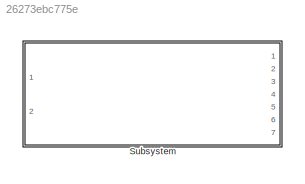
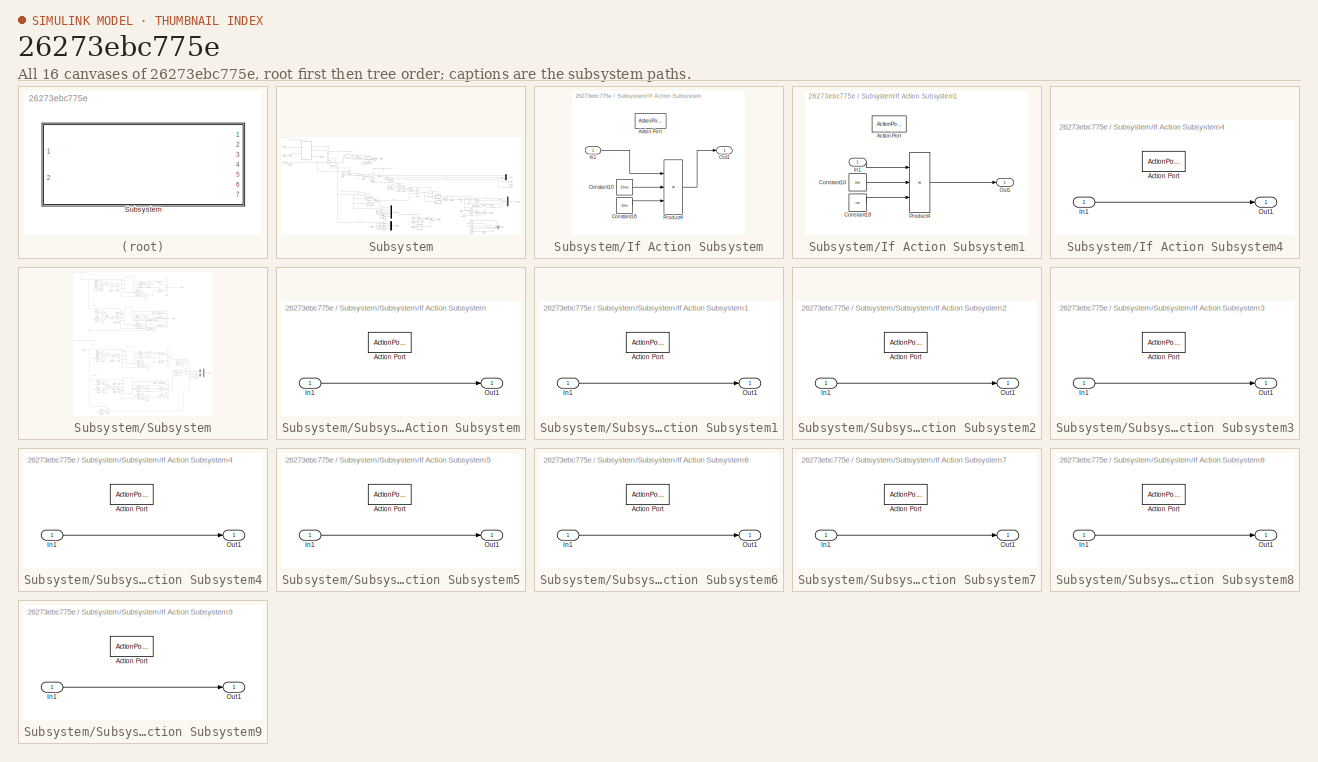
[diagram: thumbnail index - all 16 canvases of the model, root first then tree order]
MODEL slx_26273ebc775e
KIND library
CONFIG AbsTol = auto
CONFIG EnableMultiTasking = off
CONFIG FixedStep = auto
CONFIG MaxStep = auto
CONFIG MinStep = auto
CONFIG RelTol = 1e-3
CONFIG SampleTimeConstraint = Unconstrained
CONFIG Solver = VariableStepAuto
CONFIG SolverName = VariableStepAuto
CONFIG StartTime = 0.0
CONFIG StopTime = 10.0
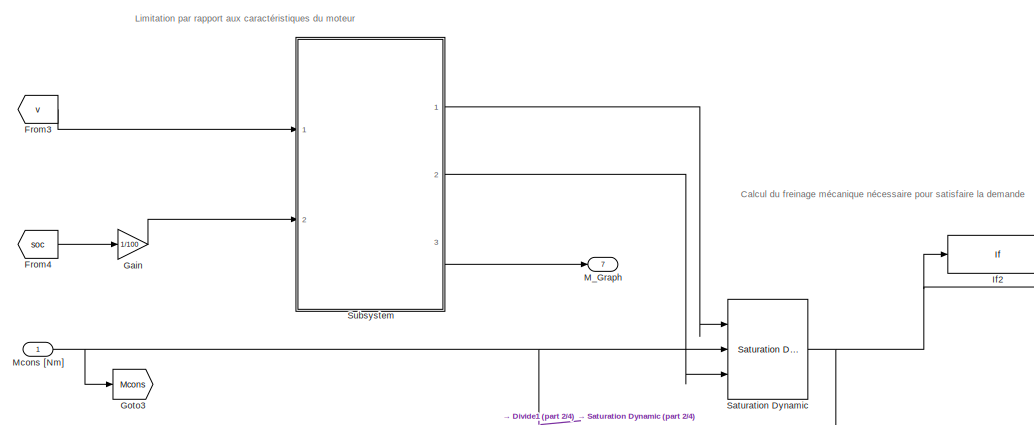
[diagram: Subsystem - part 1/4, top left region]
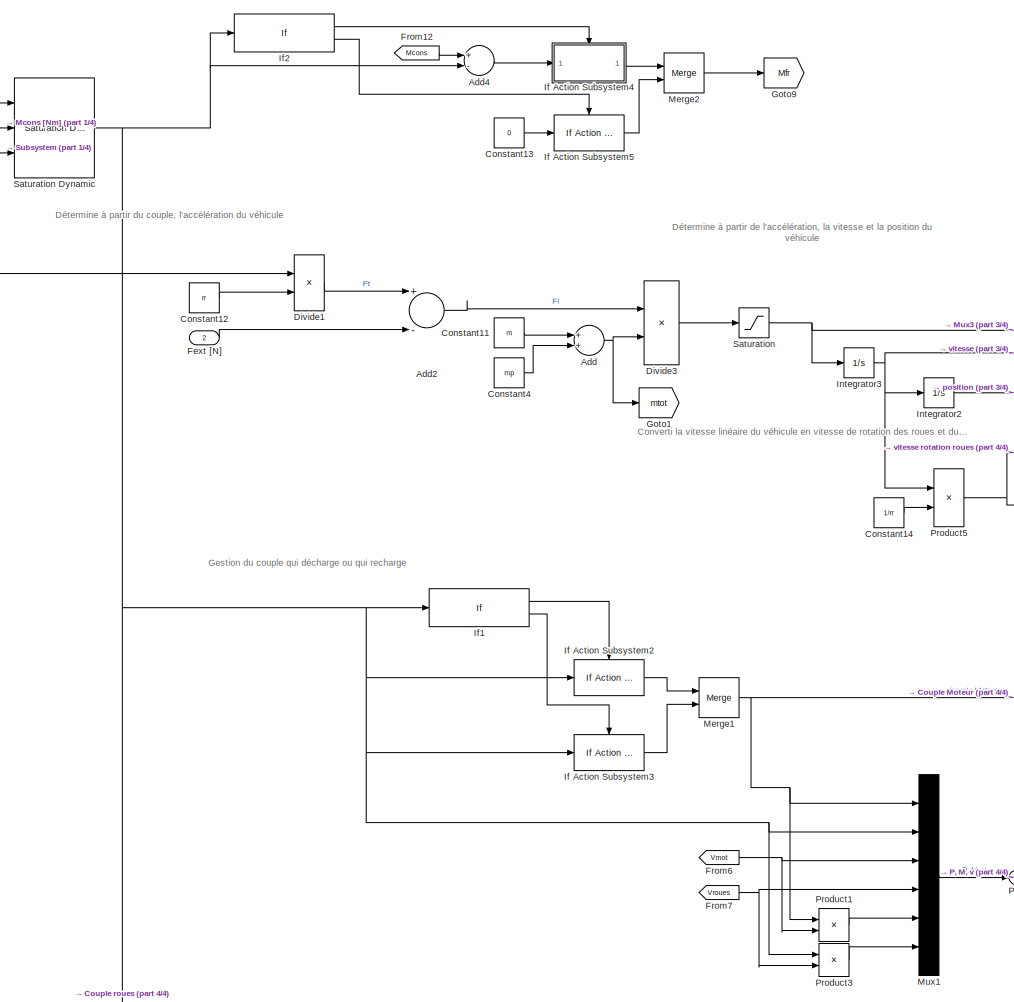
[diagram: Subsystem - part 2/4, central region]
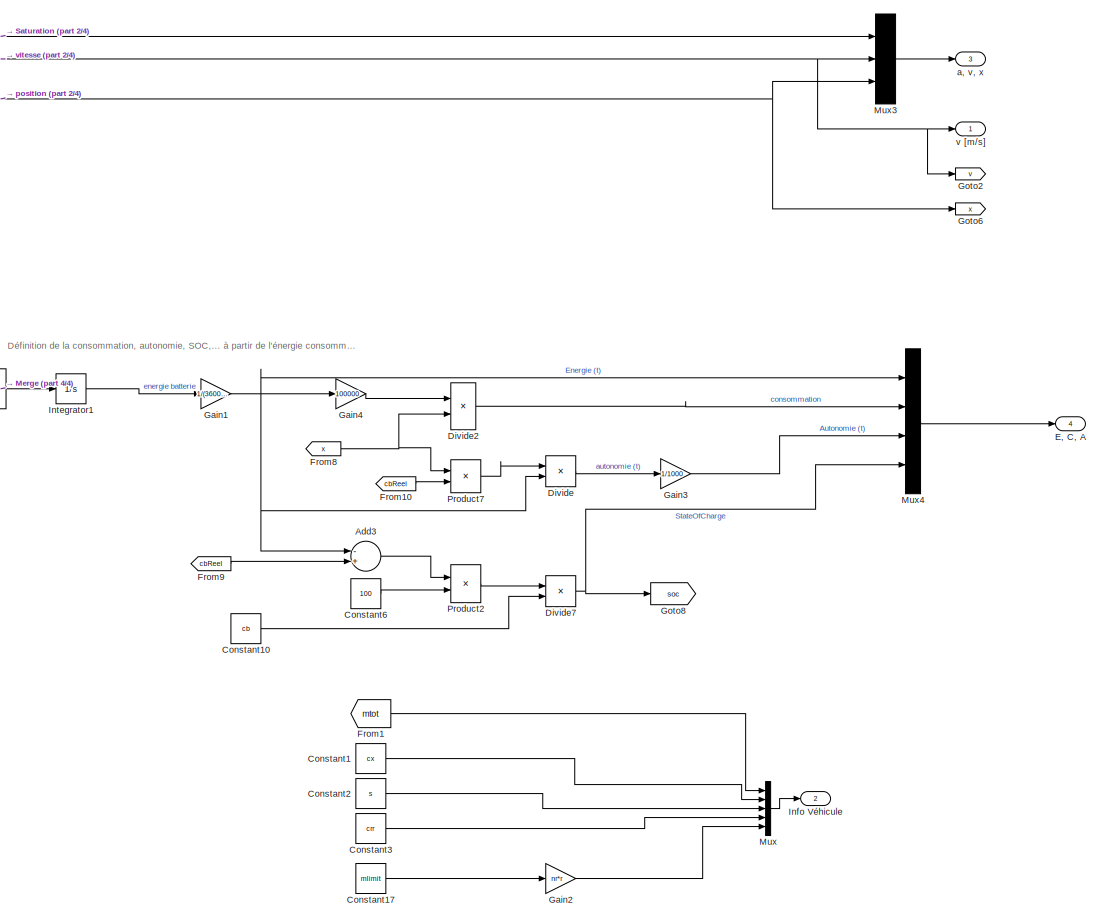
[diagram: Subsystem - part 3/4, bottom right region]
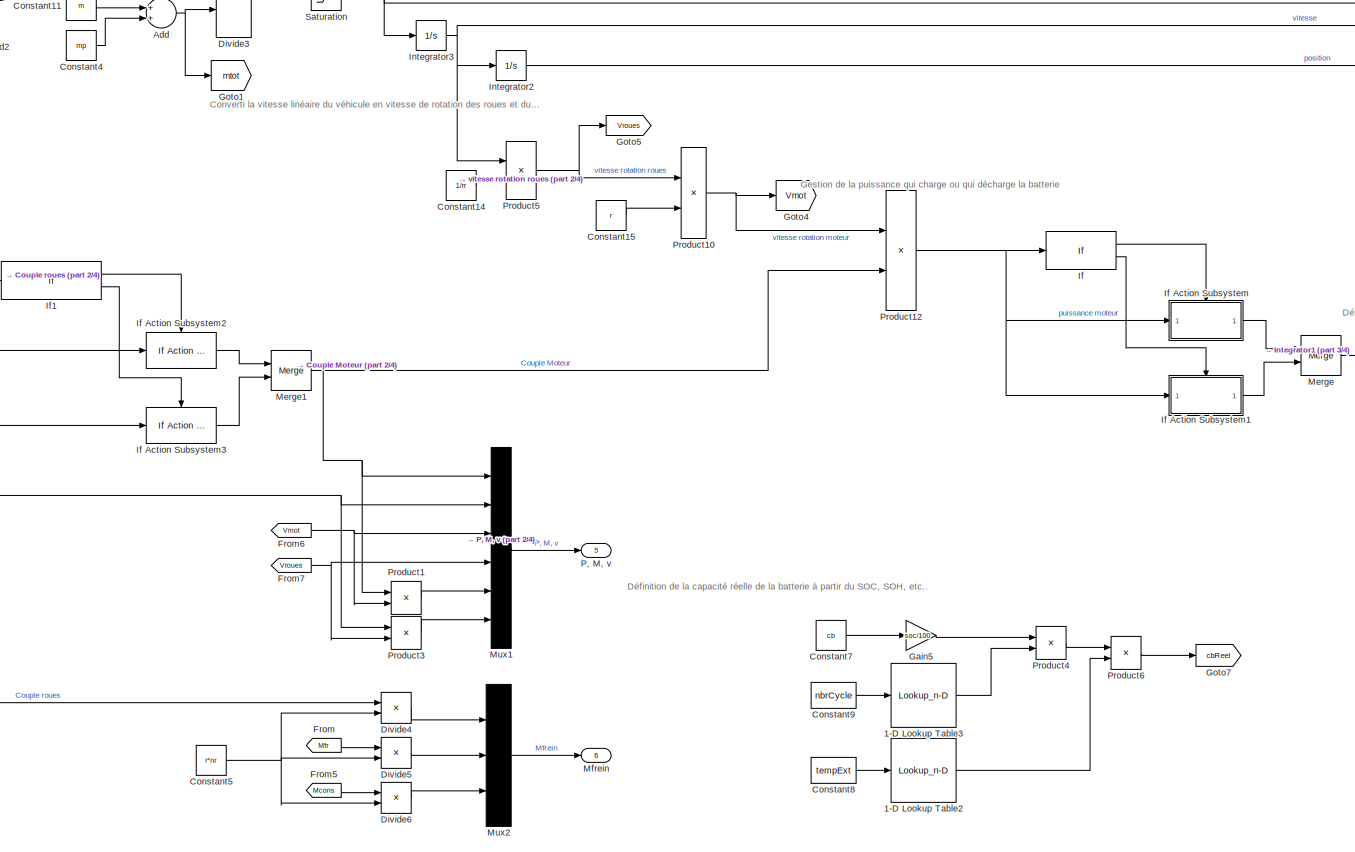
[diagram: Subsystem - part 4/4, bottom center region]
BLOCK [SubSystem] Subsystem
  Ports = [2, 7]
  RequestExecContextInheritance = off
BLOCK [Lookup_n-D] Subsystem/1-D Lookup Table2
  BreakpointsForDimension1 = temp
  InternalRulePriority = Speed
  NumberOfTableDimensions = 1
  Ports = [1, 1]
  RndMeth = Simplest
  Table = dod
BLOCK [Lookup_n-D] Subsystem/1-D Lookup Table3
  BreakpointsForDimension1 = cycleLife
  InternalRulePriority = Speed
  NumberOfTableDimensions = 1
  Ports = [1, 1]
  RndMeth = Simplest
  Table = dod2
BLOCK [Sum] Subsystem/Add
  InputSameDT = off
  OutDataTypeStr = Inherit: Inherit via internal rule
  Ports = [2, 1]
  SaturateOnIntegerOverflow = off
BLOCK [Sum] Subsystem/Add2
  InputSameDT = off
  Inputs = +-
  OutDataTypeStr = Inherit: Inherit via internal rule
  Ports = [2, 1]
  SaturateOnIntegerOverflow = off
BLOCK [Sum] Subsystem/Add3
  InputSameDT = off
  Inputs = -+
  OutDataTypeStr = Inherit: Inherit via internal rule
  Ports = [2, 1]
  SaturateOnIntegerOverflow = off
BLOCK [Sum] Subsystem/Add4
  InputSameDT = off
  Inputs = +-
  OutDataTypeStr = Inherit: Inherit via internal rule
  Ports = [2, 1]
  SaturateOnIntegerOverflow = off
BLOCK [Constant] Subsystem/Constant1
  Value = cx
BLOCK [Constant] Subsystem/Constant10
  Value = cb
BLOCK [Constant] Subsystem/Constant11
  Value = m
BLOCK [Constant] Subsystem/Constant12
  Value = rr
BLOCK [Constant] Subsystem/Constant13
  Value = 0
BLOCK [Constant] Subsystem/Constant14
  Value = 1/rr
BLOCK [Constant] Subsystem/Constant15
  Value = r
BLOCK [Constant] Subsystem/Constant17
  Value = mlimit
BLOCK [Constant] Subsystem/Constant2
  Value = s
BLOCK [Constant] Subsystem/Constant3
  Value = crr
BLOCK [Constant] Subsystem/Constant4
  Value = mp
BLOCK [Constant] Subsystem/Constant5
  Value = r*nr
BLOCK [Constant] Subsystem/Constant6
  Value = 100
BLOCK [Constant] Subsystem/Constant7
  Value = cb
BLOCK [Constant] Subsystem/Constant8
  Value = tempExt
BLOCK [Constant] Subsystem/Constant9
  Value = nbrCycle
BLOCK [Product] Subsystem/Divide
  InputSameDT = off
  Inputs = */
  OutDataTypeStr = Inherit: Inherit via internal rule
  Ports = [2, 1]
  RndMeth = Floor
  SaturateOnIntegerOverflow = off
BLOCK [Product] Subsystem/Divide1
  InputSameDT = off
  Inputs = */
  OutDataTypeStr = Inherit: Inherit via internal rule
  Ports = [2, 1]
  RndMeth = Floor
  SaturateOnIntegerOverflow = off
BLOCK [Product] Subsystem/Divide2
  InputSameDT = off
  Inputs = */
  OutDataTypeStr = Inherit: Inherit via internal rule
  Ports = [2, 1]
  RndMeth = Floor
  SaturateOnIntegerOverflow = off
BLOCK [Product] Subsystem/Divide3
  InputSameDT = off
  Inputs = */
  OutDataTypeStr = Inherit: Inherit via internal rule
  Ports = [2, 1]
  RndMeth = Floor
  SaturateOnIntegerOverflow = off
BLOCK [Product] Subsystem/Divide4
  InputSameDT = off
  Inputs = */
  OutDataTypeStr = Inherit: Inherit via internal rule
  Ports = [2, 1]
  RndMeth = Floor
  SaturateOnIntegerOverflow = off
BLOCK [Product] Subsystem/Divide5
  InputSameDT = off
  Inputs = */
  OutDataTypeStr = Inherit: Inherit via internal rule
  Ports = [2, 1]
  RndMeth = Floor
  SaturateOnIntegerOverflow = off
BLOCK [Product] Subsystem/Divide6
  InputSameDT = off
  Inputs = */
  OutDataTypeStr = Inherit: Inherit via internal rule
  Ports = [2, 1]
  RndMeth = Floor
  SaturateOnIntegerOverflow = off
BLOCK [Product] Subsystem/Divide7
  InputSameDT = off
  Inputs = */
  OutDataTypeStr = Inherit: Inherit via internal rule
  Ports = [2, 1]
  RndMeth = Floor
  SaturateOnIntegerOverflow = off
BLOCK [Outport] Subsystem/E, C, A
  IconDisplay = Port number
  Port = 4
BLOCK [Inport] Subsystem/Fext [N]
  IconDisplay = Port number
  Port = 2
BLOCK [From] Subsystem/From
  GotoTag = Mfr
BLOCK [From] Subsystem/From1
  GotoTag = mtot
BLOCK [From] Subsystem/From10
  GotoTag = cbReel
BLOCK [From] Subsystem/From12
  GotoTag = Mcons
BLOCK [From] Subsystem/From3
  GotoTag = v
BLOCK [From] Subsystem/From4
  GotoTag = soc
BLOCK [From] Subsystem/From5
  GotoTag = Mcons
BLOCK [From] Subsystem/From6
  GotoTag = Vmot
BLOCK [From] Subsystem/From7
  GotoTag = Vroues
BLOCK [From] Subsystem/From8
  GotoTag = x
BLOCK [From] Subsystem/From9
  GotoTag = cbReel
BLOCK [Gain] Subsystem/Gain
  Gain = 1/100
  OutDataTypeStr = Inherit: Inherit via internal rule
  ParamDataTypeStr = Inherit: Inherit via internal rule
  SaturateOnIntegerOverflow = off
BLOCK [Gain] Subsystem/Gain1
  Gain = 1/(3600*1000)
  OutDataTypeStr = Inherit: Inherit via internal rule
  ParamDataTypeStr = Inherit: Inherit via internal rule
  SaturateOnIntegerOverflow = off
BLOCK [Gain] Subsystem/Gain2
  Gain = nr*r
  OutDataTypeStr = Inherit: Inherit via internal rule
  ParamDataTypeStr = Inherit: Inherit via internal rule
  SaturateOnIntegerOverflow = off
BLOCK [Gain] Subsystem/Gain3
  Gain = 1/1000
  OutDataTypeStr = Inherit: Inherit via internal rule
  ParamDataTypeStr = Inherit: Inherit via internal rule
  SaturateOnIntegerOverflow = off
BLOCK [Gain] Subsystem/Gain4
  Gain = 100000
  OutDataTypeStr = Inherit: Inherit via internal rule
  ParamDataTypeStr = Inherit: Inherit via internal rule
  SaturateOnIntegerOverflow = off
BLOCK [Gain] Subsystem/Gain5
  Gain = soc/100
  OutDataTypeStr = Inherit: Inherit via internal rule
  ParamDataTypeStr = Inherit: Inherit via internal rule
  SaturateOnIntegerOverflow = off
BLOCK [Goto] Subsystem/Goto1
  GotoTag = mtot
BLOCK [Goto] Subsystem/Goto2
  GotoTag = v
BLOCK [Goto] Subsystem/Goto3
  GotoTag = Mcons
BLOCK [Goto] Subsystem/Goto4
  GotoTag = Vmot
BLOCK [Goto] Subsystem/Goto5
  GotoTag = Vroues
BLOCK [Goto] Subsystem/Goto6
  GotoTag = x
BLOCK [Goto] Subsystem/Goto7
  GotoTag = cbReel
BLOCK [Goto] Subsystem/Goto8
  GotoTag = soc
BLOCK [Goto] Subsystem/Goto9
  GotoTag = Mfr
BLOCK [If] Subsystem/If
  Ports = [1, 2]
BLOCK [SubSystem] Subsystem/If Action Subsystem
  Ports = [1, 1, 0, 0, 0, 0, 0, 1]
  RequestExecContextInheritance = off
  TreatAsAtomicUnit = on
BLOCK [ActionPort] Subsystem/If Action Subsystem/Action Port
  ActionType = then
BLOCK [Constant] Subsystem/If Action Subsystem/Constant10
  Value = 1/nm
BLOCK [Constant] Subsystem/If Action Subsystem/Constant18
  Value = 1/nc
BLOCK [Inport] Subsystem/If Action Subsystem/In1
  IconDisplay = Port number
BLOCK [Outport] Subsystem/If Action Subsystem/Out1
  IconDisplay = Port number
BLOCK [Product] Subsystem/If Action Subsystem/Product4
  InputSameDT = off
  Inputs = 3
  OutDataTypeStr = Inherit: Inherit via internal rule
  Ports = [3, 1]
  RndMeth = Floor
  SaturateOnIntegerOverflow = off
BLOCK [SubSystem] Subsystem/If Action Subsystem1
  Ports = [1, 1, 0, 0, 0, 0, 0, 1]
  RequestExecContextInheritance = off
  TreatAsAtomicUnit = on
BLOCK [ActionPort] Subsystem/If Action Subsystem1/Action Port
  ActionType = else
BLOCK [Constant] Subsystem/If Action Subsystem1/Constant10
  Value = nm
BLOCK [Constant] Subsystem/If Action Subsystem1/Constant18
  Value = nc
BLOCK [Inport] Subsystem/If Action Subsystem1/In1
  IconDisplay = Port number
BLOCK [Outport] Subsystem/If Action Subsystem1/Out1
  IconDisplay = Port number
BLOCK [Product] Subsystem/If Action Subsystem1/Product4
  InputSameDT = off
  Inputs = 3
  OutDataTypeStr = Inherit: Inherit via internal rule
  Ports = [3, 1]
  RndMeth = Floor
  SaturateOnIntegerOverflow = off
BLOCK [Reference] Subsystem/If Action Subsystem2  REF=$bdroot/Subsystem/If Action
Subsystem
  Ports = [1, 1, 0, 0, 0, 0, 0, 1]
  SourceBlock = $bdroot/Subsystem/If Action\nSubsystem
  SourceType = SubSystem
BLOCK [Reference] Subsystem/If Action Subsystem3  REF=$bdroot/Subsystem/If Action
Subsystem1
  Ports = [1, 1, 0, 0, 0, 0, 0, 1]
  SourceBlock = $bdroot/Subsystem/If Action\nSubsystem1
  SourceType = SubSystem
BLOCK [SubSystem] Subsystem/If Action Subsystem4
  Ports = [1, 1, 0, 0, 0, 0, 0, 1]
  RequestExecContextInheritance = off
  TreatAsAtomicUnit = on
BLOCK [ActionPort] Subsystem/If Action Subsystem4/Action Port
  ActionType = then
BLOCK [Inport] Subsystem/If Action Subsystem4/In1
  IconDisplay = Port number
BLOCK [Outport] Subsystem/If Action Subsystem4/Out1
  IconDisplay = Port number
BLOCK [Reference] Subsystem/If Action Subsystem5  REF=$bdroot/Subsystem/If Action
Subsystem4
  Ports = [1, 1, 0, 0, 0, 0, 0, 1]
  SourceBlock = $bdroot/Subsystem/If Action\nSubsystem4
  SourceType = SubSystem
BLOCK [If] Subsystem/If1
  IfExpression = u1 >= 0
  Ports = [1, 2]
BLOCK [If] Subsystem/If2
  IfExpression = u1 <= 0
  Ports = [1, 2]
BLOCK [Outport] Subsystem/Info Véhicule
  IconDisplay = Port number
  Port = 2
BLOCK [Integrator] Subsystem/Integrator1
  Ports = [1, 1]
BLOCK [Integrator] Subsystem/Integrator2
  Ports = [1, 1]
BLOCK [Integrator] Subsystem/Integrator3
  Ports = [1, 1]
BLOCK [Outport] Subsystem/M_Graph 
  IconDisplay = Port number
  Port = 7
BLOCK [Inport] Subsystem/Mcons [Nm]
  IconDisplay = Port number
BLOCK [Merge] Subsystem/Merge
  Ports = [2, 1]
BLOCK [Merge] Subsystem/Merge1
  Ports = [2, 1]
BLOCK [Merge] Subsystem/Merge2
  Ports = [2, 1]
BLOCK [Outport] Subsystem/Mfrein
  IconDisplay = Port number
  Port = 6
BLOCK [Mux] Subsystem/Mux
  DisplayOption = bar
  Inputs = 5
  Ports = [5, 1]
BLOCK [Mux] Subsystem/Mux1
  DisplayOption = bar
  Inputs = 6
  Ports = [6, 1]
BLOCK [Mux] Subsystem/Mux2
  DisplayOption = bar
  Inputs = 3
  Ports = [3, 1]
BLOCK [Mux] Subsystem/Mux3
  DisplayOption = bar
  Inputs = 3
  Ports = [3, 1]
BLOCK [Mux] Subsystem/Mux4
  DisplayOption = bar
  Ports = [4, 1]
BLOCK [Outport] Subsystem/P, M, v
  IconDisplay = Port number
  Port = 5
BLOCK [Product] Subsystem/Product1
  InputSameDT = off
  OutDataTypeStr = Inherit: Inherit via internal rule
  Ports = [2, 1]
  RndMeth = Floor
  SaturateOnIntegerOverflow = off
BLOCK [Product] Subsystem/Product10
  InputSameDT = off
  OutDataTypeStr = Inherit: Inherit via internal rule
  Ports = [2, 1]
  RndMeth = Floor
  SaturateOnIntegerOverflow = off
BLOCK [Product] Subsystem/Product12
  InputSameDT = off
  OutDataTypeStr = Inherit: Inherit via internal rule
  Ports = [2, 1]
  RndMeth = Floor
  SaturateOnIntegerOverflow = off
BLOCK [Product] Subsystem/Product2
  InputSameDT = off
  OutDataTypeStr = Inherit: Inherit via internal rule
  Ports = [2, 1]
  RndMeth = Floor
  SaturateOnIntegerOverflow = off
BLOCK [Product] Subsystem/Product3
  InputSameDT = off
  OutDataTypeStr = Inherit: Inherit via internal rule
  Ports = [2, 1]
  RndMeth = Floor
  SaturateOnIntegerOverflow = off
BLOCK [Product] Subsystem/Product4
  InputSameDT = off
  OutDataTypeStr = Inherit: Inherit via internal rule
  Ports = [2, 1]
  RndMeth = Floor
  SaturateOnIntegerOverflow = off
BLOCK [Product] Subsystem/Product5
  InputSameDT = off
  OutDataTypeStr = Inherit: Inherit via internal rule
  Ports = [2, 1]
  RndMeth = Floor
  SaturateOnIntegerOverflow = off
BLOCK [Product] Subsystem/Product6
  InputSameDT = off
  OutDataTypeStr = Inherit: Inherit via internal rule
  Ports = [2, 1]
  RndMeth = Floor
  SaturateOnIntegerOverflow = off
BLOCK [Product] Subsystem/Product7
  InputSameDT = off
  OutDataTypeStr = Inherit: Inherit via internal rule
  Ports = [2, 1]
  RndMeth = Floor
  SaturateOnIntegerOverflow = off
BLOCK [Saturate] Subsystem/Saturation
  InputPortMap = u0
  LowerLimit = -alimit
  Ports = [1, 1]
  UpperLimit = alimit
BLOCK [Reference] Subsystem/Saturation Dynamic  REF=simulink/Discontinuities/Saturation
Dynamic
  Ports = [3, 1]
  SourceBlock = simulink/Discontinuities/Saturation\nDynamic
  SourceProductBaseCode = SL
  SourceProductName = Simulink
  SourceType = Saturation Dynamic
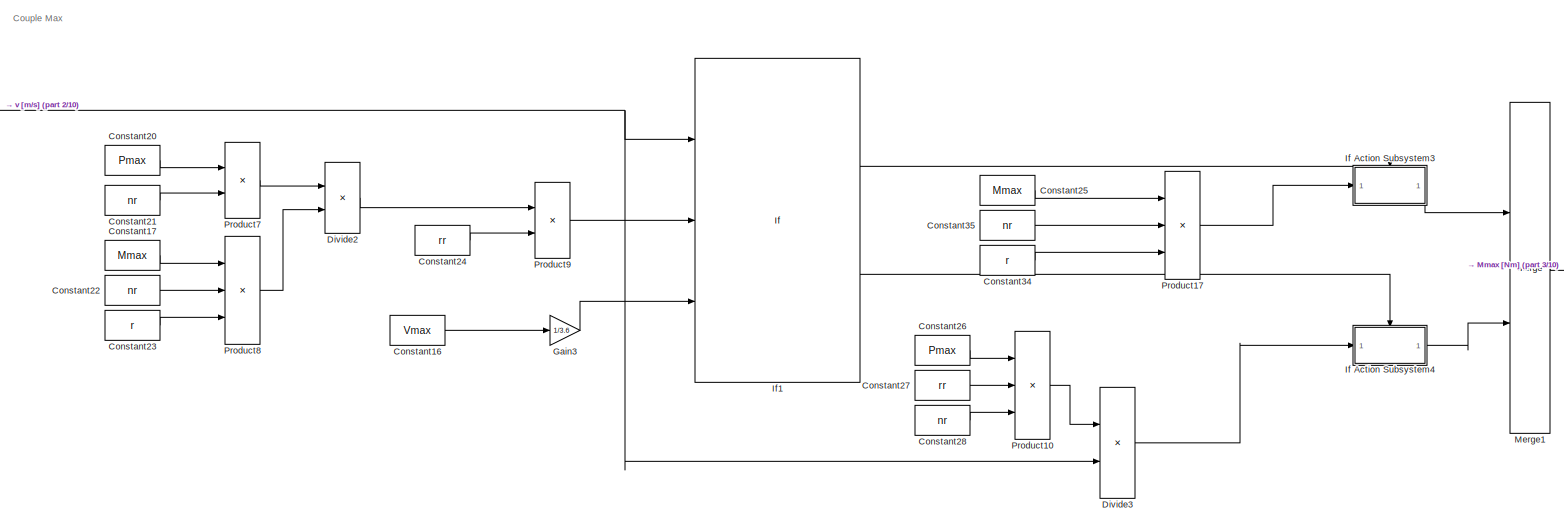
[diagram: Subsystem/Subsystem - part 1/10, top center region]
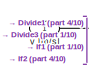
[diagram: Subsystem/Subsystem - part 2/10, top left region]
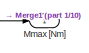
[diagram: Subsystem/Subsystem - part 3/10, top right region]
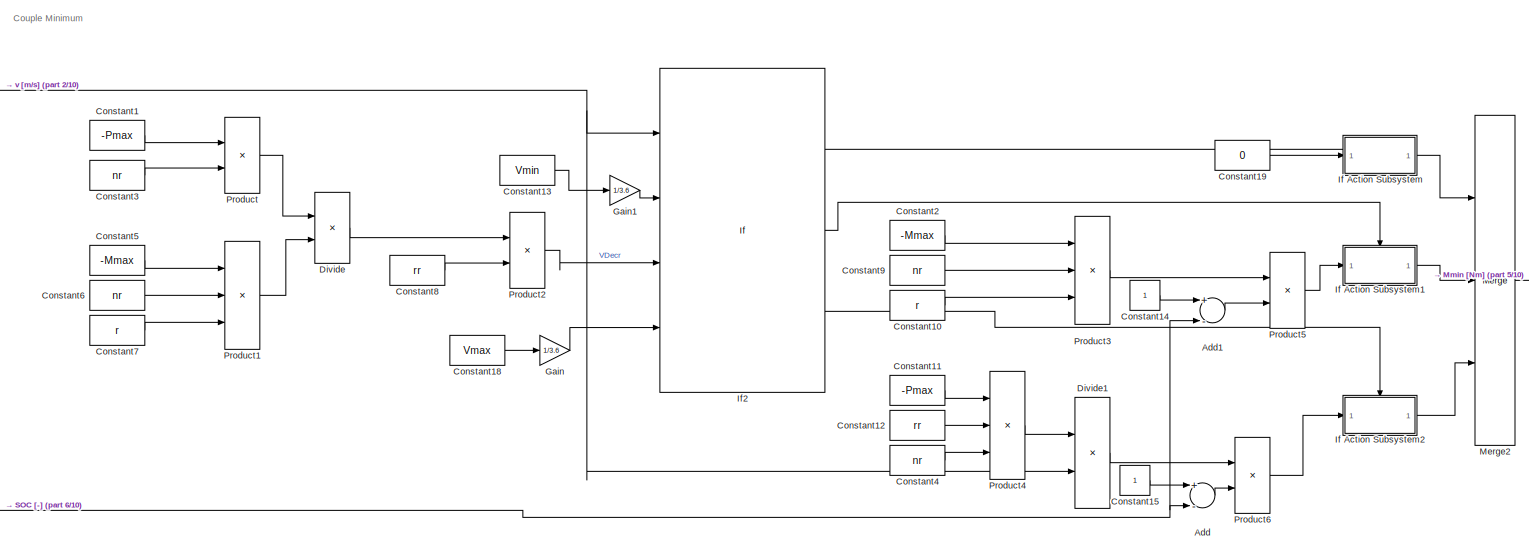
[diagram: Subsystem/Subsystem - part 4/10, top center region]
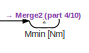
[diagram: Subsystem/Subsystem - part 5/10, top right region]
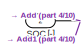
[diagram: Subsystem/Subsystem - part 6/10, middle left region]
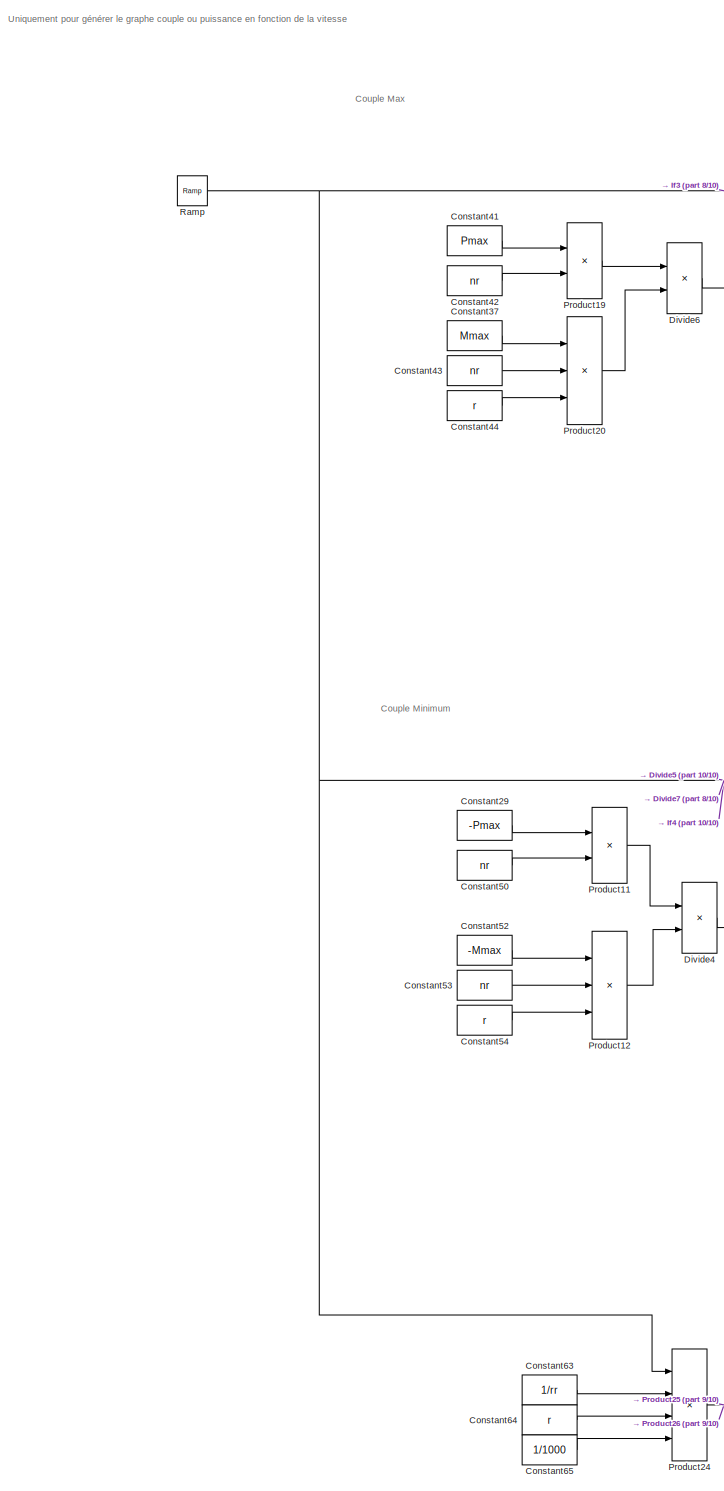
[diagram: Subsystem/Subsystem - part 7/10, bottom left region]
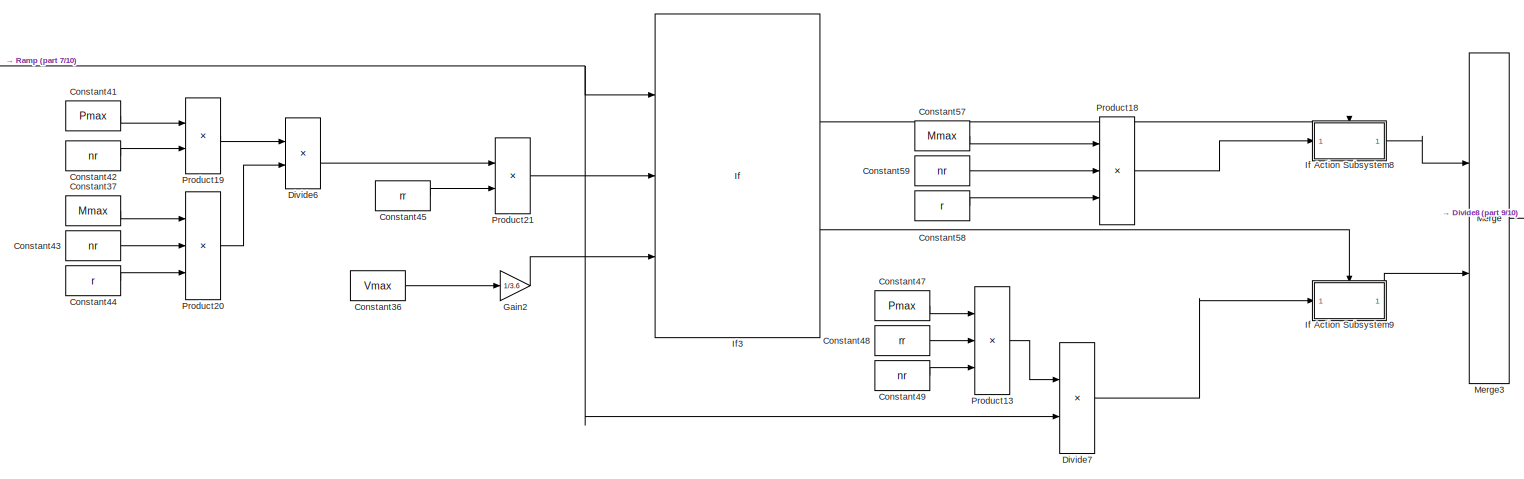
[diagram: Subsystem/Subsystem - part 8/10, central region]
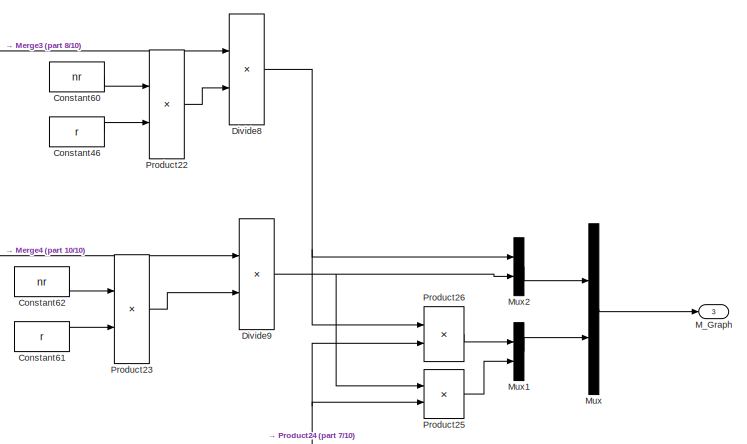
[diagram: Subsystem/Subsystem - part 9/10, bottom right region]
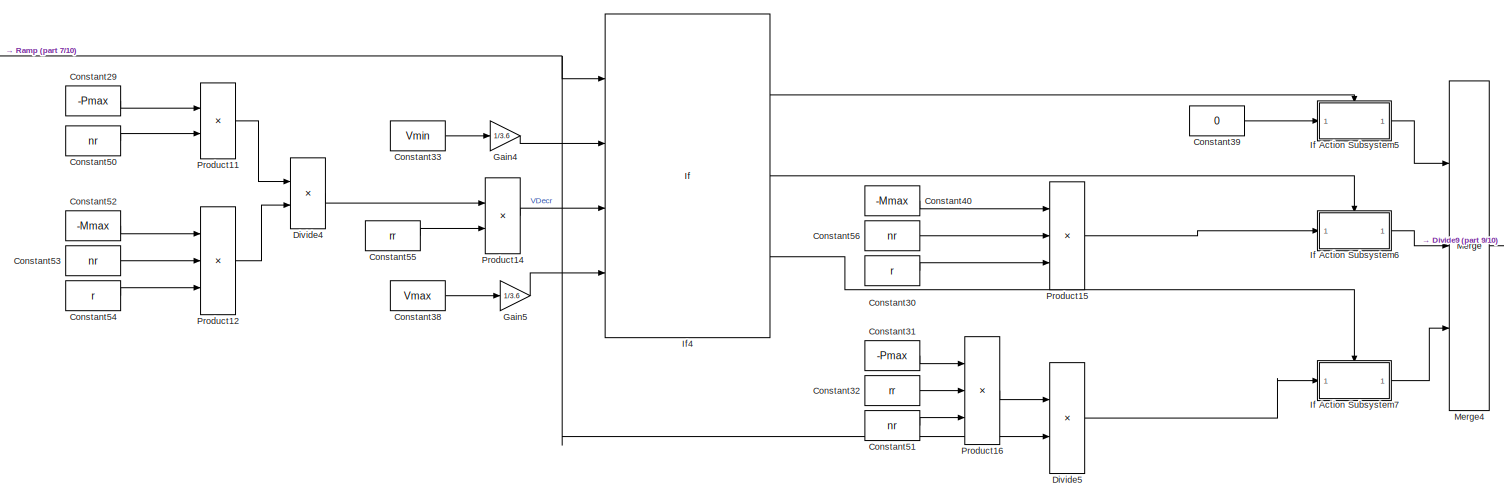
[diagram: Subsystem/Subsystem - part 10/10, bottom center region]
BLOCK [SubSystem] Subsystem/Subsystem
  Ports = [2, 3]
  RequestExecContextInheritance = off
BLOCK [Sum] Subsystem/Subsystem/Add
  InputSameDT = off
  Inputs = +-
  OutDataTypeStr = Inherit: Inherit via internal rule
  Ports = [2, 1]
  SaturateOnIntegerOverflow = off
BLOCK [Sum] Subsystem/Subsystem/Add1
  InputSameDT = off
  Inputs = +-
  OutDataTypeStr = Inherit: Inherit via internal rule
  Ports = [2, 1]
  SaturateOnIntegerOverflow = off
BLOCK [Constant] Subsystem/Subsystem/Constant1
  Value = -Pmax
BLOCK [Constant] Subsystem/Subsystem/Constant10
  Value = r
BLOCK [Constant] Subsystem/Subsystem/Constant11
  Value = -Pmax
BLOCK [Constant] Subsystem/Subsystem/Constant12
  Value = rr
BLOCK [Constant] Subsystem/Subsystem/Constant13
  Value = Vmin
BLOCK [Constant] Subsystem/Subsystem/Constant14
BLOCK [Constant] Subsystem/Subsystem/Constant15
BLOCK [Constant] Subsystem/Subsystem/Constant16
  Value = Vmax
BLOCK [Constant] Subsystem/Subsystem/Constant17
  Value = Mmax
BLOCK [Constant] Subsystem/Subsystem/Constant18
  Value = Vmax
BLOCK [Constant] Subsystem/Subsystem/Constant19
  Value = 0
BLOCK [Constant] Subsystem/Subsystem/Constant2
  Value = -Mmax
BLOCK [Constant] Subsystem/Subsystem/Constant20
  Value = Pmax
BLOCK [Constant] Subsystem/Subsystem/Constant21
  Value = nr
BLOCK [Constant] Subsystem/Subsystem/Constant22
  Value = nr
BLOCK [Constant] Subsystem/Subsystem/Constant23
  Value = r
BLOCK [Constant] Subsystem/Subsystem/Constant24
  Value = rr
BLOCK [Constant] Subsystem/Subsystem/Constant25
  Value = Mmax
BLOCK [Constant] Subsystem/Subsystem/Constant26
  Value = Pmax
BLOCK [Constant] Subsystem/Subsystem/Constant27
  Value = rr
BLOCK [Constant] Subsystem/Subsystem/Constant28
  Value = nr
BLOCK [Constant] Subsystem/Subsystem/Constant29
  Value = -Pmax
BLOCK [Constant] Subsystem/Subsystem/Constant3
  Value = nr
BLOCK [Constant] Subsystem/Subsystem/Constant30
  Value = r
BLOCK [Constant] Subsystem/Subsystem/Constant31
  Value = -Pmax
BLOCK [Constant] Subsystem/Subsystem/Constant32
  Value = rr
BLOCK [Constant] Subsystem/Subsystem/Constant33
  Value = Vmin
BLOCK [Constant] Subsystem/Subsystem/Constant34
  Value = r
BLOCK [Constant] Subsystem/Subsystem/Constant35
  Value = nr
BLOCK [Constant] Subsystem/Subsystem/Constant36
  Value = Vmax
BLOCK [Constant] Subsystem/Subsystem/Constant37
  Value = Mmax
BLOCK [Constant] Subsystem/Subsystem/Constant38
  Value = Vmax
BLOCK [Constant] Subsystem/Subsystem/Constant39
  Value = 0
BLOCK [Constant] Subsystem/Subsystem/Constant4
  Value = nr
BLOCK [Constant] Subsystem/Subsystem/Constant40
  Value = -Mmax
BLOCK [Constant] Subsystem/Subsystem/Constant41
  Value = Pmax
BLOCK [Constant] Subsystem/Subsystem/Constant42
  Value = nr
BLOCK [Constant] Subsystem/Subsystem/Constant43
  Value = nr
BLOCK [Constant] Subsystem/Subsystem/Constant44
  Value = r
BLOCK [Constant] Subsystem/Subsystem/Constant45
  Value = rr
BLOCK [Constant] Subsystem/Subsystem/Constant46
  Value = r
BLOCK [Constant] Subsystem/Subsystem/Constant47
  Value = Pmax
BLOCK [Constant] Subsystem/Subsystem/Constant48
  Value = rr
BLOCK [Constant] Subsystem/Subsystem/Constant49
  Value = nr
BLOCK [Constant] Subsystem/Subsystem/Constant5
  Value = -Mmax
BLOCK [Constant] Subsystem/Subsystem/Constant50
  Value = nr
BLOCK [Constant] Subsystem/Subsystem/Constant51
  Value = nr
BLOCK [Constant] Subsystem/Subsystem/Constant52
  Value = -Mmax
BLOCK [Constant] Subsystem/Subsystem/Constant53
  Value = nr
BLOCK [Constant] Subsystem/Subsystem/Constant54
  Value = r
BLOCK [Constant] Subsystem/Subsystem/Constant55
  Value = rr
BLOCK [Constant] Subsystem/Subsystem/Constant56
  Value = nr
BLOCK [Constant] Subsystem/Subsystem/Constant57
  Value = Mmax
BLOCK [Constant] Subsystem/Subsystem/Constant58
  Value = r
BLOCK [Constant] Subsystem/Subsystem/Constant59
  Value = nr
BLOCK [Constant] Subsystem/Subsystem/Constant6
  Value = nr
BLOCK [Constant] Subsystem/Subsystem/Constant60
  Value = nr
BLOCK [Constant] Subsystem/Subsystem/Constant61
  Value = r
BLOCK [Constant] Subsystem/Subsystem/Constant62
  Value = nr
BLOCK [Constant] Subsystem/Subsystem/Constant63
  Value = 1/rr
BLOCK [Constant] Subsystem/Subsystem/Constant64
  Value = r
BLOCK [Constant] Subsystem/Subsystem/Constant65
  Value = 1/1000
BLOCK [Constant] Subsystem/Subsystem/Constant7
  Value = r
BLOCK [Constant] Subsystem/Subsystem/Constant8
  Value = rr
BLOCK [Constant] Subsystem/Subsystem/Constant9
  Value = nr
BLOCK [Product] Subsystem/Subsystem/Divide
  InputSameDT = off
  Inputs = */
  OutDataTypeStr = Inherit: Inherit via internal rule
  Ports = [2, 1]
  RndMeth = Floor
  SaturateOnIntegerOverflow = off
BLOCK [Product] Subsystem/Subsystem/Divide1
  InputSameDT = off
  Inputs = */
  OutDataTypeStr = Inherit: Inherit via internal rule
  Ports = [2, 1]
  RndMeth = Floor
  SaturateOnIntegerOverflow = off
BLOCK [Product] Subsystem/Subsystem/Divide2
  InputSameDT = off
  Inputs = */
  OutDataTypeStr = Inherit: Inherit via internal rule
  Ports = [2, 1]
  RndMeth = Floor
  SaturateOnIntegerOverflow = off
BLOCK [Product] Subsystem/Subsystem/Divide3
  InputSameDT = off
  Inputs = */
  OutDataTypeStr = Inherit: Inherit via internal rule
  Ports = [2, 1]
  RndMeth = Floor
  SaturateOnIntegerOverflow = off
BLOCK [Product] Subsystem/Subsystem/Divide4
  InputSameDT = off
  Inputs = */
  OutDataTypeStr = Inherit: Inherit via internal rule
  Ports = [2, 1]
  RndMeth = Floor
  SaturateOnIntegerOverflow = off
BLOCK [Product] Subsystem/Subsystem/Divide5
  InputSameDT = off
  Inputs = */
  OutDataTypeStr = Inherit: Inherit via internal rule
  Ports = [2, 1]
  RndMeth = Floor
  SaturateOnIntegerOverflow = off
BLOCK [Product] Subsystem/Subsystem/Divide6
  InputSameDT = off
  Inputs = */
  OutDataTypeStr = Inherit: Inherit via internal rule
  Ports = [2, 1]
  RndMeth = Floor
  SaturateOnIntegerOverflow = off
BLOCK [Product] Subsystem/Subsystem/Divide7
  InputSameDT = off
  Inputs = */
  OutDataTypeStr = Inherit: Inherit via internal rule
  Ports = [2, 1]
  RndMeth = Floor
  SaturateOnIntegerOverflow = off
BLOCK [Product] Subsystem/Subsystem/Divide8
  InputSameDT = off
  Inputs = */
  OutDataTypeStr = Inherit: Inherit via internal rule
  Ports = [2, 1]
  RndMeth = Floor
  SaturateOnIntegerOverflow = off
BLOCK [Product] Subsystem/Subsystem/Divide9
  InputSameDT = off
  Inputs = */
  OutDataTypeStr = Inherit: Inherit via internal rule
  Ports = [2, 1]
  RndMeth = Floor
  SaturateOnIntegerOverflow = off
BLOCK [Gain] Subsystem/Subsystem/Gain
  Gain = 1/3.6
  OutDataTypeStr = Inherit: Inherit via internal rule
  ParamDataTypeStr = Inherit: Inherit via internal rule
  SaturateOnIntegerOverflow = off
BLOCK [Gain] Subsystem/Subsystem/Gain1
  Gain = 1/3.6
  OutDataTypeStr = Inherit: Inherit via internal rule
  ParamDataTypeStr = Inherit: Inherit via internal rule
  SaturateOnIntegerOverflow = off
BLOCK [Gain] Subsystem/Subsystem/Gain2
  Gain = 1/3.6
  OutDataTypeStr = Inherit: Inherit via internal rule
  ParamDataTypeStr = Inherit: Inherit via internal rule
  SaturateOnIntegerOverflow = off
BLOCK [Gain] Subsystem/Subsystem/Gain3
  Gain = 1/3.6
  OutDataTypeStr = Inherit: Inherit via internal rule
  ParamDataTypeStr = Inherit: Inherit via internal rule
  SaturateOnIntegerOverflow = off
BLOCK [Gain] Subsystem/Subsystem/Gain4
  Gain = 1/3.6
  OutDataTypeStr = Inherit: Inherit via internal rule
  ParamDataTypeStr = Inherit: Inherit via internal rule
  SaturateOnIntegerOverflow = off
BLOCK [Gain] Subsystem/Subsystem/Gain5
  Gain = 1/3.6
  OutDataTypeStr = Inherit: Inherit via internal rule
  ParamDataTypeStr = Inherit: Inherit via internal rule
  SaturateOnIntegerOverflow = off
BLOCK [SubSystem] Subsystem/Subsystem/If Action Subsystem
  Ports = [1, 1, 0, 0, 0, 0, 0, 1]
  RequestExecContextInheritance = off
  TreatAsAtomicUnit = on
BLOCK [ActionPort] Subsystem/Subsystem/If Action Subsystem/Action Port
BLOCK [Inport] Subsystem/Subsystem/If Action Subsystem/In1
  IconDisplay = Port number
BLOCK [Outport] Subsystem/Subsystem/If Action Subsystem/Out1
  IconDisplay = Port number
BLOCK [SubSystem] Subsystem/Subsystem/If Action Subsystem1
  Ports = [1, 1, 0, 0, 0, 0, 0, 1]
  RequestExecContextInheritance = off
  TreatAsAtomicUnit = on
BLOCK [ActionPort] Subsystem/Subsystem/If Action Subsystem1/Action Port
BLOCK [Inport] Subsystem/Subsystem/If Action Subsystem1/In1
  IconDisplay = Port number
BLOCK [Outport] Subsystem/Subsystem/If Action Subsystem1/Out1
  IconDisplay = Port number
BLOCK [SubSystem] Subsystem/Subsystem/If Action Subsystem2
  Ports = [1, 1, 0, 0, 0, 0, 0, 1]
  RequestExecContextInheritance = off
  TreatAsAtomicUnit = on
BLOCK [ActionPort] Subsystem/Subsystem/If Action Subsystem2/Action Port
BLOCK [Inport] Subsystem/Subsystem/If Action Subsystem2/In1
  IconDisplay = Port number
BLOCK [Outport] Subsystem/Subsystem/If Action Subsystem2/Out1
  IconDisplay = Port number
BLOCK [SubSystem] Subsystem/Subsystem/If Action Subsystem3
  Ports = [1, 1, 0, 0, 0, 0, 0, 1]
  RequestExecContextInheritance = off
  TreatAsAtomicUnit = on
BLOCK [ActionPort] Subsystem/Subsystem/If Action Subsystem3/Action Port
BLOCK [Inport] Subsystem/Subsystem/If Action Subsystem3/In1
  IconDisplay = Port number
BLOCK [Outport] Subsystem/Subsystem/If Action Subsystem3/Out1
  IconDisplay = Port number
BLOCK [SubSystem] Subsystem/Subsystem/If Action Subsystem4
  Ports = [1, 1, 0, 0, 0, 0, 0, 1]
  RequestExecContextInheritance = off
  TreatAsAtomicUnit = on
BLOCK [ActionPort] Subsystem/Subsystem/If Action Subsystem4/Action Port
BLOCK [Inport] Subsystem/Subsystem/If Action Subsystem4/In1
  IconDisplay = Port number
BLOCK [Outport] Subsystem/Subsystem/If Action Subsystem4/Out1
  IconDisplay = Port number
BLOCK [SubSystem] Subsystem/Subsystem/If Action Subsystem5
  Ports = [1, 1, 0, 0, 0, 0, 0, 1]
  RequestExecContextInheritance = off
  TreatAsAtomicUnit = on
BLOCK [ActionPort] Subsystem/Subsystem/If Action Subsystem5/Action Port
BLOCK [Inport] Subsystem/Subsystem/If Action Subsystem5/In1
  IconDisplay = Port number
BLOCK [Outport] Subsystem/Subsystem/If Action Subsystem5/Out1
  IconDisplay = Port number
BLOCK [SubSystem] Subsystem/Subsystem/If Action Subsystem6
  Ports = [1, 1, 0, 0, 0, 0, 0, 1]
  RequestExecContextInheritance = off
  TreatAsAtomicUnit = on
BLOCK [ActionPort] Subsystem/Subsystem/If Action Subsystem6/Action Port
BLOCK [Inport] Subsystem/Subsystem/If Action Subsystem6/In1
  IconDisplay = Port number
BLOCK [Outport] Subsystem/Subsystem/If Action Subsystem6/Out1
  IconDisplay = Port number
BLOCK [SubSystem] Subsystem/Subsystem/If Action Subsystem7
  Ports = [1, 1, 0, 0, 0, 0, 0, 1]
  RequestExecContextInheritance = off
  TreatAsAtomicUnit = on
BLOCK [ActionPort] Subsystem/Subsystem/If Action Subsystem7/Action Port
BLOCK [Inport] Subsystem/Subsystem/If Action Subsystem7/In1
  IconDisplay = Port number
BLOCK [Outport] Subsystem/Subsystem/If Action Subsystem7/Out1
  IconDisplay = Port number
BLOCK [SubSystem] Subsystem/Subsystem/If Action Subsystem8
  Ports = [1, 1, 0, 0, 0, 0, 0, 1]
  RequestExecContextInheritance = off
  TreatAsAtomicUnit = on
BLOCK [ActionPort] Subsystem/Subsystem/If Action Subsystem8/Action Port
BLOCK [Inport] Subsystem/Subsystem/If Action Subsystem8/In1
  IconDisplay = Port number
BLOCK [Outport] Subsystem/Subsystem/If Action Subsystem8/Out1
  IconDisplay = Port number
BLOCK [SubSystem] Subsystem/Subsystem/If Action Subsystem9
  Ports = [1, 1, 0, 0, 0, 0, 0, 1]
  RequestExecContextInheritance = off
  TreatAsAtomicUnit = on
BLOCK [ActionPort] Subsystem/Subsystem/If Action Subsystem9/Action Port
BLOCK [Inport] Subsystem/Subsystem/If Action Subsystem9/In1
  IconDisplay = Port number
BLOCK [Outport] Subsystem/Subsystem/If Action Subsystem9/Out1
  IconDisplay = Port number
BLOCK [If] Subsystem/Subsystem/If1
  ElseIfExpressions = u1 > u2 & u1<=u3
  IfExpression = u1 <= u2
  NumInputs = 3
  Ports = [3, 2]
  ShowElse = off
BLOCK [If] Subsystem/Subsystem/If2
  ElseIfExpressions = u1 > u2 & u1<=u3, u1 > u3 & u1<=u4
  IfExpression = u1 <= u2
  NumInputs = 4
  Ports = [4, 3]
  ShowElse = off
BLOCK [If] Subsystem/Subsystem/If3
  ElseIfExpressions = u1 > u2
  IfExpression = u1 <= u2
  NumInputs = 3
  Ports = [3, 2]
  ShowElse = off
BLOCK [If] Subsystem/Subsystem/If4
  ElseIfExpressions = u1 > u2 & u1<=u3, u1 > u3
  IfExpression = u1 <= u2
  NumInputs = 4
  Ports = [4, 3]
  ShowElse = off
BLOCK [Outport] Subsystem/Subsystem/M_Graph
  IconDisplay = Port number
  Port = 3
BLOCK [Merge] Subsystem/Subsystem/Merge1
  Ports = [2, 1]
BLOCK [Merge] Subsystem/Subsystem/Merge2
  Inputs = 3
  Ports = [3, 1]
BLOCK [Merge] Subsystem/Subsystem/Merge3
  Ports = [2, 1]
BLOCK [Merge] Subsystem/Subsystem/Merge4
  Inputs = 3
  Ports = [3, 1]
BLOCK [Outport] Subsystem/Subsystem/Mmax [Nm]
  IconDisplay = Port number
BLOCK [Outport] Subsystem/Subsystem/Mmin [Nm]
  IconDisplay = Port number
  Port = 2
BLOCK [Mux] Subsystem/Subsystem/Mux
  DisplayOption = bar
  Inputs = 2
  Ports = [2, 1]
BLOCK [Mux] Subsystem/Subsystem/Mux1
  DisplayOption = bar
  Inputs = 2
  Ports = [2, 1]
BLOCK [Mux] Subsystem/Subsystem/Mux2
  DisplayOption = bar
  Inputs = 2
  Ports = [2, 1]
BLOCK [Product] Subsystem/Subsystem/Product
  InputSameDT = off
  OutDataTypeStr = Inherit: Inherit via internal rule
  Ports = [2, 1]
  RndMeth = Floor
  SaturateOnIntegerOverflow = off
BLOCK [Product] Subsystem/Subsystem/Product1
  InputSameDT = off
  Inputs = 3
  OutDataTypeStr = Inherit: Inherit via internal rule
  Ports = [3, 1]
  RndMeth = Floor
  SaturateOnIntegerOverflow = off
BLOCK [Product] Subsystem/Subsystem/Product10
  InputSameDT = off
  Inputs = 3
  OutDataTypeStr = Inherit: Inherit via internal rule
  Ports = [3, 1]
  RndMeth = Floor
  SaturateOnIntegerOverflow = off
BLOCK [Product] Subsystem/Subsystem/Product11
  InputSameDT = off
  OutDataTypeStr = Inherit: Inherit via internal rule
  Ports = [2, 1]
  RndMeth = Floor
  SaturateOnIntegerOverflow = off
BLOCK [Product] Subsystem/Subsystem/Product12
  InputSameDT = off
  Inputs = 3
  OutDataTypeStr = Inherit: Inherit via internal rule
  Ports = [3, 1]
  RndMeth = Floor
  SaturateOnIntegerOverflow = off
BLOCK [Product] Subsystem/Subsystem/Product13
  InputSameDT = off
  Inputs = 3
  OutDataTypeStr = Inherit: Inherit via internal rule
  Ports = [3, 1]
  RndMeth = Floor
  SaturateOnIntegerOverflow = off
BLOCK [Product] Subsystem/Subsystem/Product14
  InputSameDT = off
  OutDataTypeStr = Inherit: Inherit via internal rule
  Ports = [2, 1]
  RndMeth = Floor
  SaturateOnIntegerOverflow = off
BLOCK [Product] Subsystem/Subsystem/Product15
  InputSameDT = off
  Inputs = 3
  OutDataTypeStr = Inherit: Inherit via internal rule
  Ports = [3, 1]
  RndMeth = Floor
  SaturateOnIntegerOverflow = off
BLOCK [Product] Subsystem/Subsystem/Product16
  InputSameDT = off
  Inputs = 3
  OutDataTypeStr = Inherit: Inherit via internal rule
  Ports = [3, 1]
  RndMeth = Floor
  SaturateOnIntegerOverflow = off
BLOCK [Product] Subsystem/Subsystem/Product17
  InputSameDT = off
  Inputs = 3
  OutDataTypeStr = Inherit: Inherit via internal rule
  Ports = [3, 1]
  RndMeth = Floor
  SaturateOnIntegerOverflow = off
BLOCK [Product] Subsystem/Subsystem/Product18
  InputSameDT = off
  Inputs = 3
  OutDataTypeStr = Inherit: Inherit via internal rule
  Ports = [3, 1]
  RndMeth = Floor
  SaturateOnIntegerOverflow = off
BLOCK [Product] Subsystem/Subsystem/Product19
  InputSameDT = off
  OutDataTypeStr = Inherit: Inherit via internal rule
  Ports = [2, 1]
  RndMeth = Floor
  SaturateOnIntegerOverflow = off
BLOCK [Product] Subsystem/Subsystem/Product2
  InputSameDT = off
  OutDataTypeStr = Inherit: Inherit via internal rule
  Ports = [2, 1]
  RndMeth = Floor
  SaturateOnIntegerOverflow = off
BLOCK [Product] Subsystem/Subsystem/Product20
  InputSameDT = off
  Inputs = 3
  OutDataTypeStr = Inherit: Inherit via internal rule
  Ports = [3, 1]
  RndMeth = Floor
  SaturateOnIntegerOverflow = off
BLOCK [Product] Subsystem/Subsystem/Product21
  InputSameDT = off
  OutDataTypeStr = Inherit: Inherit via internal rule
  Ports = [2, 1]
  RndMeth = Floor
  SaturateOnIntegerOverflow = off
BLOCK [Product] Subsystem/Subsystem/Product22
  InputSameDT = off
  OutDataTypeStr = Inherit: Inherit via internal rule
  Ports = [2, 1]
  RndMeth = Floor
  SaturateOnIntegerOverflow = off
BLOCK [Product] Subsystem/Subsystem/Product23
  InputSameDT = off
  OutDataTypeStr = Inherit: Inherit via internal rule
  Ports = [2, 1]
  RndMeth = Floor
  SaturateOnIntegerOverflow = off
BLOCK [Product] Subsystem/Subsystem/Product24
  InputSameDT = off
  Inputs = 4
  OutDataTypeStr = Inherit: Inherit via internal rule
  Ports = [4, 1]
  RndMeth = Floor
  SaturateOnIntegerOverflow = off
BLOCK [Product] Subsystem/Subsystem/Product25
  InputSameDT = off
  OutDataTypeStr = Inherit: Inherit via internal rule
  Ports = [2, 1]
  RndMeth = Floor
  SaturateOnIntegerOverflow = off
BLOCK [Product] Subsystem/Subsystem/Product26
  InputSameDT = off
  OutDataTypeStr = Inherit: Inherit via internal rule
  Ports = [2, 1]
  RndMeth = Floor
  SaturateOnIntegerOverflow = off
BLOCK [Product] Subsystem/Subsystem/Product3
  InputSameDT = off
  Inputs = 3
  OutDataTypeStr = Inherit: Inherit via internal rule
  Ports = [3, 1]
  RndMeth = Floor
  SaturateOnIntegerOverflow = off
BLOCK [Product] Subsystem/Subsystem/Product4
  InputSameDT = off
  Inputs = 3
  OutDataTypeStr = Inherit: Inherit via internal rule
  Ports = [3, 1]
  RndMeth = Floor
  SaturateOnIntegerOverflow = off
BLOCK [Product] Subsystem/Subsystem/Product5
  InputSameDT = off
  OutDataTypeStr = Inherit: Inherit via internal rule
  Ports = [2, 1]
  RndMeth = Floor
  SaturateOnIntegerOverflow = off
BLOCK [Product] Subsystem/Subsystem/Product6
  InputSameDT = off
  OutDataTypeStr = Inherit: Inherit via internal rule
  Ports = [2, 1]
  RndMeth = Floor
  SaturateOnIntegerOverflow = off
BLOCK [Product] Subsystem/Subsystem/Product7
  InputSameDT = off
  OutDataTypeStr = Inherit: Inherit via internal rule
  Ports = [2, 1]
  RndMeth = Floor
  SaturateOnIntegerOverflow = off
BLOCK [Product] Subsystem/Subsystem/Product8
  InputSameDT = off
  Inputs = 3
  OutDataTypeStr = Inherit: Inherit via internal rule
  Ports = [3, 1]
  RndMeth = Floor
  SaturateOnIntegerOverflow = off
BLOCK [Product] Subsystem/Subsystem/Product9
  InputSameDT = off
  OutDataTypeStr = Inherit: Inherit via internal rule
  Ports = [2, 1]
  RndMeth = Floor
  SaturateOnIntegerOverflow = off
BLOCK [Reference] Subsystem/Subsystem/Ramp  REF=simulink/Sources/Ramp
  Ports = [0, 1]
  SourceBlock = simulink/Sources/Ramp
  SourceProductBaseCode = SL
  SourceProductName = Simulink
  SourceType = Ramp
BLOCK [Inport] Subsystem/Subsystem/SOC [-]
  IconDisplay = Port number
  Port = 2
BLOCK [Inport] Subsystem/Subsystem/v [m//s]
  IconDisplay = Port number
BLOCK [Outport] Subsystem/a, v, x
  IconDisplay = Port number
  Port = 3
BLOCK [Outport] Subsystem/v [m//s]
  IconDisplay = Port number
ANNOTATION Subsystem: Calcul du freinage mécanique nécessaire pour satisfaire la demande
ANNOTATION Subsystem: Converti la vitesse linéaire du véhicule en vitesse de rotation des roues et du moteur
ANNOTATION Subsystem: Définition de la capacité réelle de la batterie à partir du SOC, SOH, etc..
ANNOTATION Subsystem: Définition de la consommation, autonomie, SOC,... à partir de l'énergie consommée
ANNOTATION Subsystem: Détermine à partir de l'accélération, la vitesse et la position du véhicule
ANNOTATION Subsystem: Détermine à partir du couple, l'accélération du véhicule
ANNOTATION Subsystem: Gestion de la puissance qui charge ou qui décharge la batterie
ANNOTATION Subsystem: Gestion du couple qui décharge ou qui recharge
ANNOTATION Subsystem: Limitation par rapport aux caractéristiques du moteur
ANNOTATION Subsystem/Subsystem: Couple Max
ANNOTATION Subsystem/Subsystem: Couple Minimum
ANNOTATION Subsystem/Subsystem: Uniquement pour générer le graphe couple ou puissance en fonction de la vitesse
LINE Subsystem/1-D Lookup Table2:1 -> Subsystem/Product6:2
LINE Subsystem/1-D Lookup Table3:1 -> Subsystem/Product4:2
LINE Subsystem/Add2:1 -> Subsystem/Divide3:1
LINE Subsystem/Add3:1 -> Subsystem/Product2:1
LINE Subsystem/Add4:1 -> Subsystem/If Action Subsystem4:1
NET Subsystem/Add:1 -> Subsystem/Divide3:2, Subsystem/Goto1:1
LINE Subsystem/Constant10:1 -> Subsystem/Divide7:2
LINE Subsystem/Constant11:1 -> Subsystem/Add:1
LINE Subsystem/Constant12:1 -> Subsystem/Divide1:2
LINE Subsystem/Constant13:1 -> Subsystem/If Action Subsystem5:1
LINE Subsystem/Constant14:1 -> Subsystem/Product5:2
LINE Subsystem/Constant15:1 -> Subsystem/Product10:2
LINE Subsystem/Constant17:1 -> Subsystem/Gain2:1
LINE Subsystem/Constant1:1 -> Subsystem/Mux:2
LINE Subsystem/Constant2:1 -> Subsystem/Mux:3
LINE Subsystem/Constant3:1 -> Subsystem/Mux:4
LINE Subsystem/Constant4:1 -> Subsystem/Add:2
NET Subsystem/Constant5:1 -> Subsystem/Divide4:2, Subsystem/Divide5:2, Subsystem/Divide6:2
LINE Subsystem/Constant6:1 -> Subsystem/Product2:2
LINE Subsystem/Constant7:1 -> Subsystem/Gain5:1
LINE Subsystem/Constant8:1 -> Subsystem/1-D Lookup Table2:1
LINE Subsystem/Constant9:1 -> Subsystem/1-D Lookup Table3:1
LINE Subsystem/Divide1:1 -> Subsystem/Add2:1
LINE Subsystem/Divide2:1 -> Subsystem/Mux4:2
LINE Subsystem/Divide3:1 -> Subsystem/Saturation:1
LINE Subsystem/Divide4:1 -> Subsystem/Mux2:1
LINE Subsystem/Divide5:1 -> Subsystem/Mux2:2
LINE Subsystem/Divide6:1 -> Subsystem/Mux2:3
NET Subsystem/Divide7:1 -> Subsystem/Goto8:1, Subsystem/Mux4:4
LINE Subsystem/Divide:1 -> Subsystem/Gain3:1
LINE Subsystem/Fext [N]:1 -> Subsystem/Add2:2
LINE Subsystem/From10:1 -> Subsystem/Product7:2
LINE Subsystem/From12:1 -> Subsystem/Add4:1
LINE Subsystem/From1:1 -> Subsystem/Mux:1
LINE Subsystem/From3:1 -> Subsystem/Subsystem:1
LINE Subsystem/From4:1 -> Subsystem/Gain:1
LINE Subsystem/From5:1 -> Subsystem/Divide6:1
NET Subsystem/From6:1 -> Subsystem/Mux1:3, Subsystem/Product1:2
NET Subsystem/From7:1 -> Subsystem/Mux1:4, Subsystem/Product3:2
NET Subsystem/From8:1 -> Subsystem/Divide2:2, Subsystem/Product7:1
LINE Subsystem/From9:1 -> Subsystem/Add3:2
LINE Subsystem/From:1 -> Subsystem/Divide5:1
NET Subsystem/Gain1:1 -> Subsystem/Add3:1, Subsystem/Divide:2, Subsystem/Gain4:1, Subsystem/Mux4:1
LINE Subsystem/Gain2:1 -> Subsystem/Mux:5
LINE Subsystem/Gain3:1 -> Subsystem/Mux4:3
LINE Subsystem/Gain4:1 -> Subsystem/Divide2:1
LINE Subsystem/Gain5:1 -> Subsystem/Product4:1
LINE Subsystem/Gain:1 -> Subsystem/Subsystem:2
LINE Subsystem/If Action Subsystem/Constant10:1 -> Subsystem/If Action Subsystem/Product4:2
LINE Subsystem/If Action Subsystem/Constant18:1 -> Subsystem/If Action Subsystem/Product4:3
LINE Subsystem/If Action Subsystem/In1:1 -> Subsystem/If Action Subsystem/Product4:1
LINE Subsystem/If Action Subsystem/Product4:1 -> Subsystem/If Action Subsystem/Out1:1
LINE Subsystem/If Action Subsystem1/Constant10:1 -> Subsystem/If Action Subsystem1/Product4:2
LINE Subsystem/If Action Subsystem1/Constant18:1 -> Subsystem/If Action Subsystem1/Product4:3
LINE Subsystem/If Action Subsystem1/In1:1 -> Subsystem/If Action Subsystem1/Product4:1
LINE Subsystem/If Action Subsystem1/Product4:1 -> Subsystem/If Action Subsystem1/Out1:1
LINE Subsystem/If Action Subsystem1:1 -> Subsystem/Merge:2
LINE Subsystem/If Action Subsystem2:1 -> Subsystem/Merge1:1
LINE Subsystem/If Action Subsystem3:1 -> Subsystem/Merge1:2
LINE Subsystem/If Action Subsystem4/In1:1 -> Subsystem/If Action Subsystem4/Out1:1
LINE Subsystem/If Action Subsystem4:1 -> Subsystem/Merge2:1
LINE Subsystem/If Action Subsystem5:1 -> Subsystem/Merge2:2
LINE Subsystem/If Action Subsystem:1 -> Subsystem/Merge:1
LINE Subsystem/If1:1 -> Subsystem/If Action Subsystem2:ifaction
LINE Subsystem/If1:2 -> Subsystem/If Action Subsystem3:ifaction
LINE Subsystem/If2:1 -> Subsystem/If Action Subsystem4:ifaction
LINE Subsystem/If2:2 -> Subsystem/If Action Subsystem5:ifaction
LINE Subsystem/If:1 -> Subsystem/If Action Subsystem:ifaction
LINE Subsystem/If:2 -> Subsystem/If Action Subsystem1:ifaction
LINE Subsystem/Integrator1:1 -> Subsystem/Gain1:1
NET Subsystem/Integrator2:1 -> Subsystem/Goto6:1, Subsystem/Mux3:3
NET Subsystem/Integrator3:1 -> Subsystem/Goto2:1, Subsystem/Integrator2:1, Subsystem/Mux3:2, Subsystem/Product5:1, Subsystem/v [m//s]:1
NET Subsystem/Mcons [Nm]:1 -> Subsystem/Divide1:1, Subsystem/Goto3:1, Subsystem/Saturation Dynamic:2
NET Subsystem/Merge1:1 -> Subsystem/Mux1:1, Subsystem/Product12:2, Subsystem/Product1:1
LINE Subsystem/Merge2:1 -> Subsystem/Goto9:1
LINE Subsystem/Merge:1 -> Subsystem/Integrator1:1
LINE Subsystem/Mux1:1 -> Subsystem/P, M, v:1
LINE Subsystem/Mux2:1 -> Subsystem/Mfrein:1
LINE Subsystem/Mux3:1 -> Subsystem/a, v, x:1
LINE Subsystem/Mux4:1 -> Subsystem/E, C, A:1
LINE Subsystem/Mux:1 -> Subsystem/Info Véhicule:1
NET Subsystem/Product10:1 -> Subsystem/Goto4:1, Subsystem/Product12:1
NET Subsystem/Product12:1 -> Subsystem/If Action Subsystem1:1, Subsystem/If Action Subsystem:1, Subsystem/If:1
LINE Subsystem/Product1:1 -> Subsystem/Mux1:5
LINE Subsystem/Product2:1 -> Subsystem/Divide7:1
LINE Subsystem/Product3:1 -> Subsystem/Mux1:6
LINE Subsystem/Product4:1 -> Subsystem/Product6:1
NET Subsystem/Product5:1 -> Subsystem/Goto5:1, Subsystem/Product10:1
LINE Subsystem/Product6:1 -> Subsystem/Goto7:1
LINE Subsystem/Product7:1 -> Subsystem/Divide:1
NET Subsystem/Saturation Dynamic:1 -> Subsystem/Add4:2, Subsystem/Divide4:1, Subsystem/If Action Subsystem2:1, Subsystem/If Action Subsystem3:1, Subsystem/If1:1, Subsystem/If2:1, Subsystem/Mux1:2, Subsystem/Product3:1
NET Subsystem/Saturation:1 -> Subsystem/Integrator3:1, Subsystem/Mux3:1
LINE Subsystem/Subsystem/Add1:1 -> Subsystem/Subsystem/Product5:2
LINE Subsystem/Subsystem/Add:1 -> Subsystem/Subsystem/Product6:2
LINE Subsystem/Subsystem/Constant10:1 -> Subsystem/Subsystem/Product3:3
LINE Subsystem/Subsystem/Constant11:1 -> Subsystem/Subsystem/Product4:1
LINE Subsystem/Subsystem/Constant12:1 -> Subsystem/Subsystem/Product4:2
LINE Subsystem/Subsystem/Constant13:1 -> Subsystem/Subsystem/Gain1:1
LINE Subsystem/Subsystem/Constant14:1 -> Subsystem/Subsystem/Add1:1
LINE Subsystem/Subsystem/Constant15:1 -> Subsystem/Subsystem/Add:1
LINE Subsystem/Subsystem/Constant16:1 -> Subsystem/Subsystem/Gain3:1
LINE Subsystem/Subsystem/Constant17:1 -> Subsystem/Subsystem/Product8:1
LINE Subsystem/Subsystem/Constant18:1 -> Subsystem/Subsystem/Gain:1
LINE Subsystem/Subsystem/Constant19:1 -> Subsystem/Subsystem/If Action Subsystem:1
LINE Subsystem/Subsystem/Constant1:1 -> Subsystem/Subsystem/Product:1
LINE Subsystem/Subsystem/Constant20:1 -> Subsystem/Subsystem/Product7:1
LINE Subsystem/Subsystem/Constant21:1 -> Subsystem/Subsystem/Product7:2
LINE Subsystem/Subsystem/Constant22:1 -> Subsystem/Subsystem/Product8:2
LINE Subsystem/Subsystem/Constant23:1 -> Subsystem/Subsystem/Product8:3
LINE Subsystem/Subsystem/Constant24:1 -> Subsystem/Subsystem/Product9:2
LINE Subsystem/Subsystem/Constant25:1 -> Subsystem/Subsystem/Product17:1
LINE Subsystem/Subsystem/Constant26:1 -> Subsystem/Subsystem/Product10:1
LINE Subsystem/Subsystem/Constant27:1 -> Subsystem/Subsystem/Product10:2
LINE Subsystem/Subsystem/Constant28:1 -> Subsystem/Subsystem/Product10:3
LINE Subsystem/Subsystem/Constant29:1 -> Subsystem/Subsystem/Product11:1
LINE Subsystem/Subsystem/Constant2:1 -> Subsystem/Subsystem/Product3:1
LINE Subsystem/Subsystem/Constant30:1 -> Subsystem/Subsystem/Product15:3
LINE Subsystem/Subsystem/Constant31:1 -> Subsystem/Subsystem/Product16:1
LINE Subsystem/Subsystem/Constant32:1 -> Subsystem/Subsystem/Product16:2
LINE Subsystem/Subsystem/Constant33:1 -> Subsystem/Subsystem/Gain4:1
LINE Subsystem/Subsystem/Constant34:1 -> Subsystem/Subsystem/Product17:3
LINE Subsystem/Subsystem/Constant35:1 -> Subsystem/Subsystem/Product17:2
LINE Subsystem/Subsystem/Constant36:1 -> Subsystem/Subsystem/Gain2:1
LINE Subsystem/Subsystem/Constant37:1 -> Subsystem/Subsystem/Product20:1
LINE Subsystem/Subsystem/Constant38:1 -> Subsystem/Subsystem/Gain5:1
LINE Subsystem/Subsystem/Constant39:1 -> Subsystem/Subsystem/If Action Subsystem5:1
LINE Subsystem/Subsystem/Constant3:1 -> Subsystem/Subsystem/Product:2
LINE Subsystem/Subsystem/Constant40:1 -> Subsystem/Subsystem/Product15:1
LINE Subsystem/Subsystem/Constant41:1 -> Subsystem/Subsystem/Product19:1
LINE Subsystem/Subsystem/Constant42:1 -> Subsystem/Subsystem/Product19:2
LINE Subsystem/Subsystem/Constant43:1 -> Subsystem/Subsystem/Product20:2
LINE Subsystem/Subsystem/Constant44:1 -> Subsystem/Subsystem/Product20:3
LINE Subsystem/Subsystem/Constant45:1 -> Subsystem/Subsystem/Product21:2
LINE Subsystem/Subsystem/Constant46:1 -> Subsystem/Subsystem/Product22:2
LINE Subsystem/Subsystem/Constant47:1 -> Subsystem/Subsystem/Product13:1
LINE Subsystem/Subsystem/Constant48:1 -> Subsystem/Subsystem/Product13:2
LINE Subsystem/Subsystem/Constant49:1 -> Subsystem/Subsystem/Product13:3
LINE Subsystem/Subsystem/Constant4:1 -> Subsystem/Subsystem/Product4:3
LINE Subsystem/Subsystem/Constant50:1 -> Subsystem/Subsystem/Product11:2
LINE Subsystem/Subsystem/Constant51:1 -> Subsystem/Subsystem/Product16:3
LINE Subsystem/Subsystem/Constant52:1 -> Subsystem/Subsystem/Product12:1
LINE Subsystem/Subsystem/Constant53:1 -> Subsystem/Subsystem/Product12:2
LINE Subsystem/Subsystem/Constant54:1 -> Subsystem/Subsystem/Product12:3
LINE Subsystem/Subsystem/Constant55:1 -> Subsystem/Subsystem/Product14:2
LINE Subsystem/Subsystem/Constant56:1 -> Subsystem/Subsystem/Product15:2
LINE Subsystem/Subsystem/Constant57:1 -> Subsystem/Subsystem/Product18:1
LINE Subsystem/Subsystem/Constant58:1 -> Subsystem/Subsystem/Product18:3
LINE Subsystem/Subsystem/Constant59:1 -> Subsystem/Subsystem/Product18:2
LINE Subsystem/Subsystem/Constant5:1 -> Subsystem/Subsystem/Product1:1
LINE Subsystem/Subsystem/Constant60:1 -> Subsystem/Subsystem/Product22:1
LINE Subsystem/Subsystem/Constant61:1 -> Subsystem/Subsystem/Product23:2
LINE Subsystem/Subsystem/Constant62:1 -> Subsystem/Subsystem/Product23:1
LINE Subsystem/Subsystem/Constant63:1 -> Subsystem/Subsystem/Product24:2
LINE Subsystem/Subsystem/Constant64:1 -> Subsystem/Subsystem/Product24:3
LINE Subsystem/Subsystem/Constant65:1 -> Subsystem/Subsystem/Product24:4
LINE Subsystem/Subsystem/Constant6:1 -> Subsystem/Subsystem/Product1:2
LINE Subsystem/Subsystem/Constant7:1 -> Subsystem/Subsystem/Product1:3
LINE Subsystem/Subsystem/Constant8:1 -> Subsystem/Subsystem/Product2:2
LINE Subsystem/Subsystem/Constant9:1 -> Subsystem/Subsystem/Product3:2
LINE Subsystem/Subsystem/Divide1:1 -> Subsystem/Subsystem/Product6:1
LINE Subsystem/Subsystem/Divide2:1 -> Subsystem/Subsystem/Product9:1
LINE Subsystem/Subsystem/Divide3:1 -> Subsystem/Subsystem/If Action Subsystem4:1
LINE Subsystem/Subsystem/Divide4:1 -> Subsystem/Subsystem/Product14:1
LINE Subsystem/Subsystem/Divide5:1 -> Subsystem/Subsystem/If Action Subsystem7:1
LINE Subsystem/Subsystem/Divide6:1 -> Subsystem/Subsystem/Product21:1
LINE Subsystem/Subsystem/Divide7:1 -> Subsystem/Subsystem/If Action Subsystem9:1
NET Subsystem/Subsystem/Divide8:1 -> Subsystem/Subsystem/Mux2:1, Subsystem/Subsystem/Product26:1
NET Subsystem/Subsystem/Divide9:1 -> Subsystem/Subsystem/Mux2:2, Subsystem/Subsystem/Product25:1
LINE Subsystem/Subsystem/Divide:1 -> Subsystem/Subsystem/Product2:1
LINE Subsystem/Subsystem/Gain1:1 -> Subsystem/Subsystem/If2:2
LINE Subsystem/Subsystem/Gain2:1 -> Subsystem/Subsystem/If3:3
LINE Subsystem/Subsystem/Gain3:1 -> Subsystem/Subsystem/If1:3
LINE Subsystem/Subsystem/Gain4:1 -> Subsystem/Subsystem/If4:2
LINE Subsystem/Subsystem/Gain5:1 -> Subsystem/Subsystem/If4:4
LINE Subsystem/Subsystem/Gain:1 -> Subsystem/Subsystem/If2:4
LINE Subsystem/Subsystem/If Action Subsystem/In1:1 -> Subsystem/Subsystem/If Action Subsystem/Out1:1
LINE Subsystem/Subsystem/If Action Subsystem1/In1:1 -> Subsystem/Subsystem/If Action Subsystem1/Out1:1
LINE Subsystem/Subsystem/If Action Subsystem1:1 -> Subsystem/Subsystem/Merge2:2
LINE Subsystem/Subsystem/If Action Subsystem2/In1:1 -> Subsystem/Subsystem/If Action Subsystem2/Out1:1
LINE Subsystem/Subsystem/If Action Subsystem2:1 -> Subsystem/Subsystem/Merge2:3
LINE Subsystem/Subsystem/If Action Subsystem3/In1:1 -> Subsystem/Subsystem/If Action Subsystem3/Out1:1
LINE Subsystem/Subsystem/If Action Subsystem3:1 -> Subsystem/Subsystem/Merge1:1
LINE Subsystem/Subsystem/If Action Subsystem4/In1:1 -> Subsystem/Subsystem/If Action Subsystem4/Out1:1
LINE Subsystem/Subsystem/If Action Subsystem4:1 -> Subsystem/Subsystem/Merge1:2
LINE Subsystem/Subsystem/If Action Subsystem5/In1:1 -> Subsystem/Subsystem/If Action Subsystem5/Out1:1
LINE Subsystem/Subsystem/If Action Subsystem5:1 -> Subsystem/Subsystem/Merge4:1
LINE Subsystem/Subsystem/If Action Subsystem6/In1:1 -> Subsystem/Subsystem/If Action Subsystem6/Out1:1
LINE Subsystem/Subsystem/If Action Subsystem6:1 -> Subsystem/Subsystem/Merge4:2
LINE Subsystem/Subsystem/If Action Subsystem7/In1:1 -> Subsystem/Subsystem/If Action Subsystem7/Out1:1
LINE Subsystem/Subsystem/If Action Subsystem7:1 -> Subsystem/Subsystem/Merge4:3
LINE Subsystem/Subsystem/If Action Subsystem8/In1:1 -> Subsystem/Subsystem/If Action Subsystem8/Out1:1
LINE Subsystem/Subsystem/If Action Subsystem8:1 -> Subsystem/Subsystem/Merge3:1
LINE Subsystem/Subsystem/If Action Subsystem9/In1:1 -> Subsystem/Subsystem/If Action Subsystem9/Out1:1
LINE Subsystem/Subsystem/If Action Subsystem9:1 -> Subsystem/Subsystem/Merge3:2
LINE Subsystem/Subsystem/If Action Subsystem:1 -> Subsystem/Subsystem/Merge2:1
LINE Subsystem/Subsystem/If1:1 -> Subsystem/Subsystem/If Action Subsystem3:ifaction
LINE Subsystem/Subsystem/If1:2 -> Subsystem/Subsystem/If Action Subsystem4:ifaction
LINE Subsystem/Subsystem/If2:1 -> Subsystem/Subsystem/If Action Subsystem:ifaction
LINE Subsystem/Subsystem/If2:2 -> Subsystem/Subsystem/If Action Subsystem1:ifaction
LINE Subsystem/Subsystem/If2:3 -> Subsystem/Subsystem/If Action Subsystem2:ifaction
LINE Subsystem/Subsystem/If3:1 -> Subsystem/Subsystem/If Action Subsystem8:ifaction
LINE Subsystem/Subsystem/If3:2 -> Subsystem/Subsystem/If Action Subsystem9:ifaction
LINE Subsystem/Subsystem/If4:1 -> Subsystem/Subsystem/If Action Subsystem5:ifaction
LINE Subsystem/Subsystem/If4:2 -> Subsystem/Subsystem/If Action Subsystem6:ifaction
LINE Subsystem/Subsystem/If4:3 -> Subsystem/Subsystem/If Action Subsystem7:ifaction
LINE Subsystem/Subsystem/Merge1:1 -> Subsystem/Subsystem/Mmax [Nm]:1
LINE Subsystem/Subsystem/Merge2:1 -> Subsystem/Subsystem/Mmin [Nm]:1
LINE Subsystem/Subsystem/Merge3:1 -> Subsystem/Subsystem/Divide8:1
LINE Subsystem/Subsystem/Merge4:1 -> Subsystem/Subsystem/Divide9:1
LINE Subsystem/Subsystem/Mux1:1 -> Subsystem/Subsystem/Mux:2
LINE Subsystem/Subsystem/Mux2:1 -> Subsystem/Subsystem/Mux:1
LINE Subsystem/Subsystem/Mux:1 -> Subsystem/Subsystem/M_Graph:1
LINE Subsystem/Subsystem/Product10:1 -> Subsystem/Subsystem/Divide3:1
LINE Subsystem/Subsystem/Product11:1 -> Subsystem/Subsystem/Divide4:1
LINE Subsystem/Subsystem/Product12:1 -> Subsystem/Subsystem/Divide4:2
LINE Subsystem/Subsystem/Product13:1 -> Subsystem/Subsystem/Divide7:1
LINE Subsystem/Subsystem/Product14:1 -> Subsystem/Subsystem/If4:3
LINE Subsystem/Subsystem/Product15:1 -> Subsystem/Subsystem/If Action Subsystem6:1
LINE Subsystem/Subsystem/Product16:1 -> Subsystem/Subsystem/Divide5:1
LINE Subsystem/Subsystem/Product17:1 -> Subsystem/Subsystem/If Action Subsystem3:1
LINE Subsystem/Subsystem/Product18:1 -> Subsystem/Subsystem/If Action Subsystem8:1
LINE Subsystem/Subsystem/Product19:1 -> Subsystem/Subsystem/Divide6:1
LINE Subsystem/Subsystem/Product1:1 -> Subsystem/Subsystem/Divide:2
LINE Subsystem/Subsystem/Product20:1 -> Subsystem/Subsystem/Divide6:2
LINE Subsystem/Subsystem/Product21:1 -> Subsystem/Subsystem/If3:2
LINE Subsystem/Subsystem/Product22:1 -> Subsystem/Subsystem/Divide8:2
LINE Subsystem/Subsystem/Product23:1 -> Subsystem/Subsystem/Divide9:2
NET Subsystem/Subsystem/Product24:1 -> Subsystem/Subsystem/Product25:2, Subsystem/Subsystem/Product26:2
LINE Subsystem/Subsystem/Product25:1 -> Subsystem/Subsystem/Mux1:2
LINE Subsystem/Subsystem/Product26:1 -> Subsystem/Subsystem/Mux1:1
LINE Subsystem/Subsystem/Product2:1 -> Subsystem/Subsystem/If2:3
LINE Subsystem/Subsystem/Product3:1 -> Subsystem/Subsystem/Product5:1
LINE Subsystem/Subsystem/Product4:1 -> Subsystem/Subsystem/Divide1:1
LINE Subsystem/Subsystem/Product5:1 -> Subsystem/Subsystem/If Action Subsystem1:1
LINE Subsystem/Subsystem/Product6:1 -> Subsystem/Subsystem/If Action Subsystem2:1
LINE Subsystem/Subsystem/Product7:1 -> Subsystem/Subsystem/Divide2:1
LINE Subsystem/Subsystem/Product8:1 -> Subsystem/Subsystem/Divide2:2
LINE Subsystem/Subsystem/Product9:1 -> Subsystem/Subsystem/If1:2
LINE Subsystem/Subsystem/Product:1 -> Subsystem/Subsystem/Divide:1
NET Subsystem/Subsystem/Ramp:1 -> Subsystem/Subsystem/Divide5:2, Subsystem/Subsystem/Divide7:2, Subsystem/Subsystem/If3:1, Subsystem/Subsystem/If4:1, Subsystem/Subsystem/Product24:1
NET Subsystem/Subsystem/SOC [-]:1 -> Subsystem/Subsystem/Add1:2, Subsystem/Subsystem/Add:2
NET Subsystem/Subsystem/v [m//s]:1 -> Subsystem/Subsystem/Divide1:2, Subsystem/Subsystem/Divide3:2, Subsystem/Subsystem/If1:1, Subsystem/Subsystem/If2:1
LINE Subsystem/Subsystem:1 -> Subsystem/Saturation Dynamic:1
LINE Subsystem/Subsystem:2 -> Subsystem/Saturation Dynamic:3
LINE Subsystem/Subsystem:3 -> Subsystem/M_Graph :1
note: NET lines group one-source signal fan-out (src -> all destinations, sorted); 1:1 wires keep LINE
